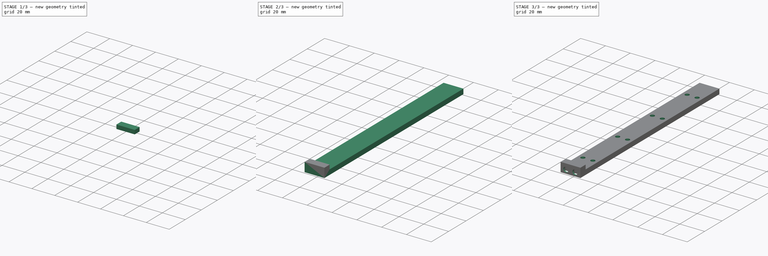
[diagram: build sequence overview — one tinted view per stage of 3, left to right]
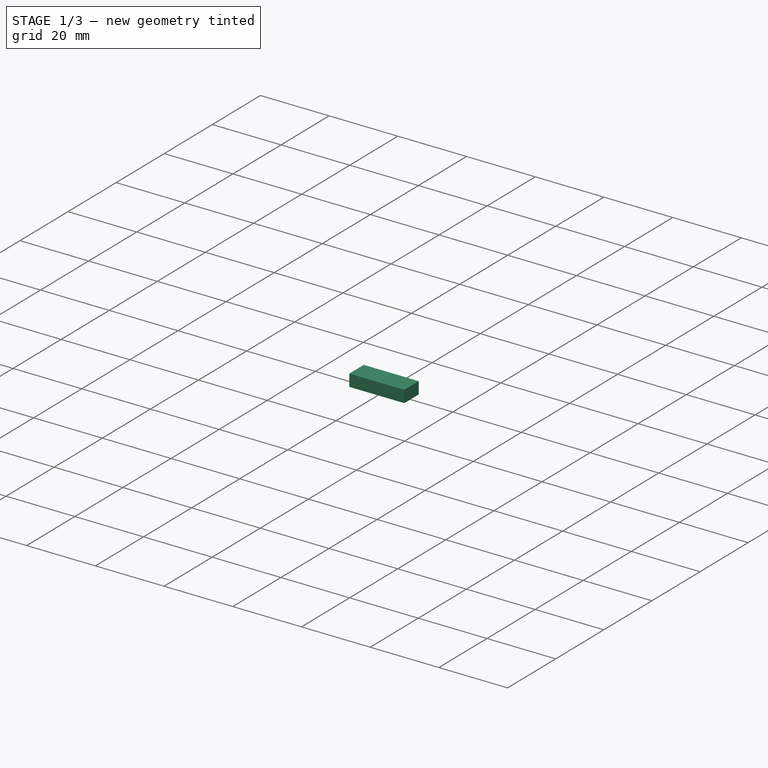
[diagram: stage 1 of 3 — iso view after this stage's code; geometry added in this stage tinted green]
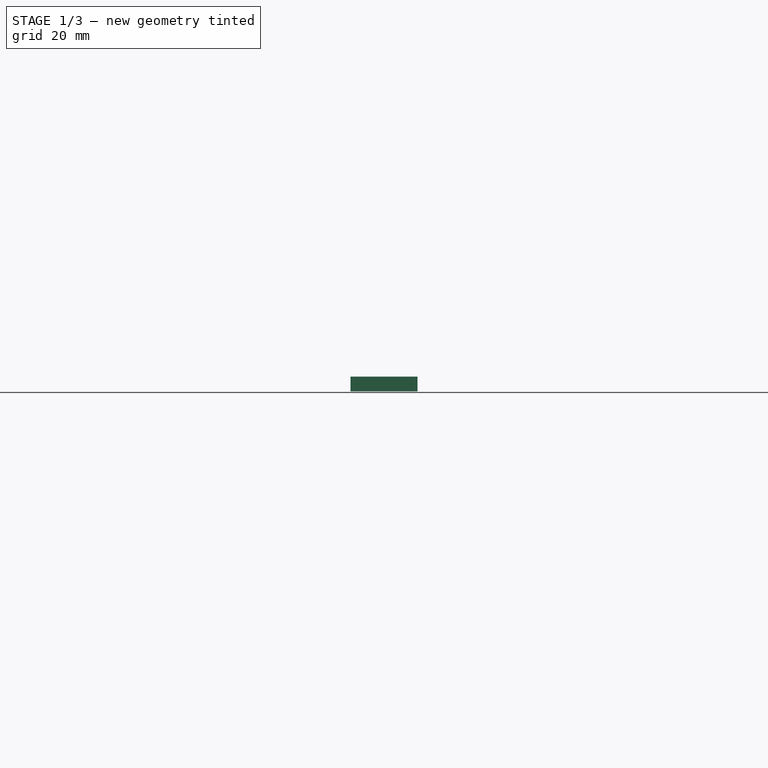
[diagram: stage 1 of 3 — front view after this stage's code; geometry added in this stage tinted green]
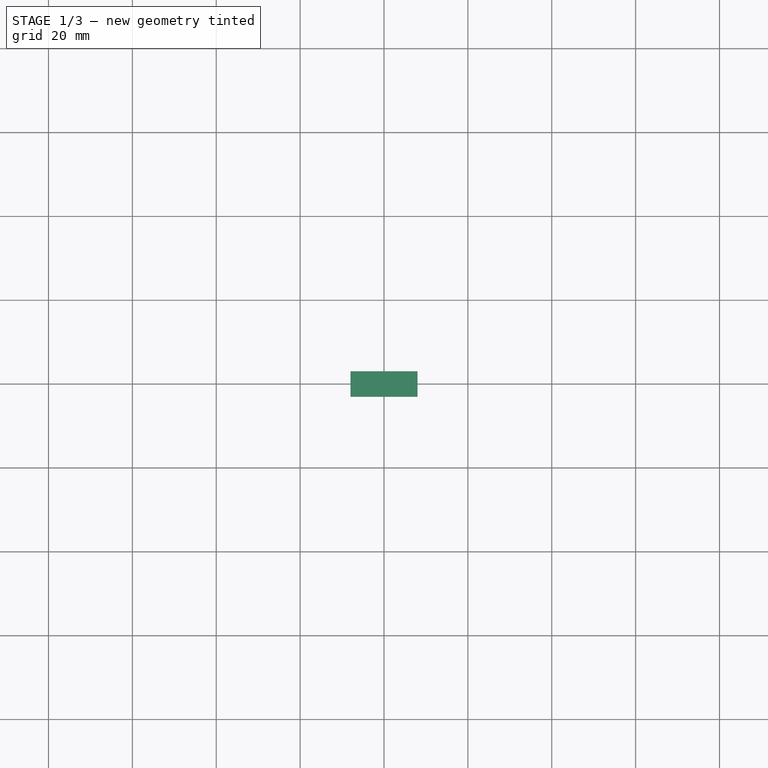
[diagram: stage 1 of 3 — top view after this stage's code; geometry added in this stage tinted green]
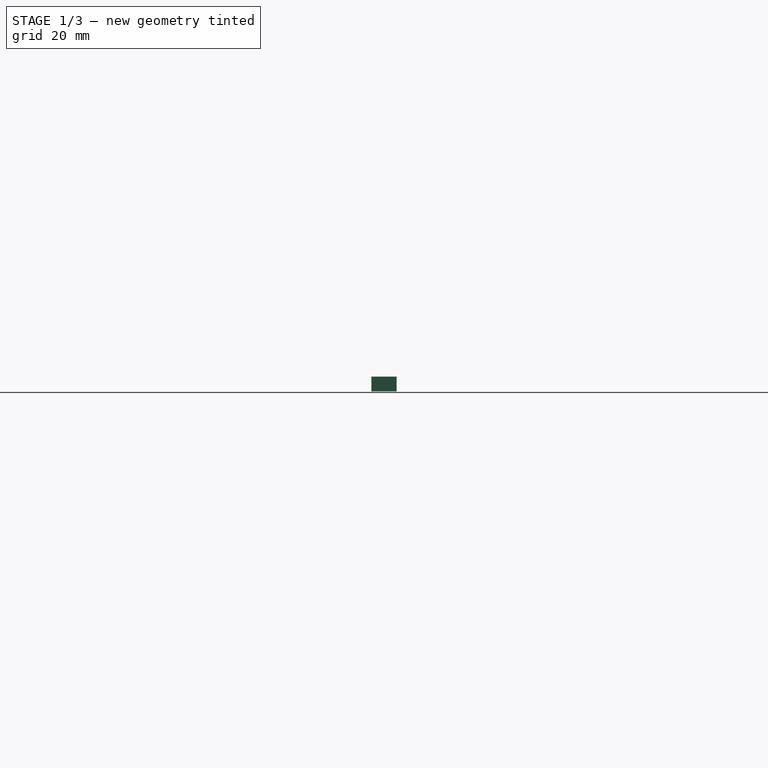
[diagram: stage 1 of 3 — right view after this stage's code; geometry added in this stage tinted green]
FCSTD DOCUMENT  (FreeCAD 1.0R39109 (Git))
Label: side support
License: All rights reserved
LicenseURL: https://en.wikipedia.org/wiki/All_rights_reserved
objects: Sketcher::SketchObject×5, PartDesign::Pad×3, PartDesign::Hole×1, PartDesign::Pocket×1, PartDesign::Body×1
note: 26 computed .brp shape members not serialized (recipe doc carries the construction recipe); baked Part::Feature solids carry a one-line shape summary decoded from their .brp
EXTERNAL_REF file=case.FCStd obj=Spreadsheet

FEATURE [Sketcher::SketchObject] Sketch
  ArcFitTolerance = 1e-06
  AttachmentSupport = -> [XY_Plane]
  FullyConstrained = true
  MakeInternals = false
  MapMode = 5
  expr: Constraints[27] = case#Spreadsheet.magnet_diameter
  expr: Constraints[28] = case#Spreadsheet.magnet_thickness
  sketch-geometry (15):
    g0: LineSegment StartX=-8 StartY=3 StartZ=0 EndX=-8 EndY=-3 EndZ=0
    g1: LineSegment StartX=-8 StartY=-3 StartZ=0 EndX=8 EndY=-3 EndZ=0
    g2: LineSegment StartX=8 StartY=-3 StartZ=0 EndX=8 EndY=3 EndZ=0
    g3: LineSegment StartX=8 StartY=3 StartZ=0 EndX=-8 EndY=3 EndZ=0
    g4: LineSegment StartX=6.7 StartY=-2 StartZ=0 EndX=0.65 EndY=-2 EndZ=0
    g5: LineSegment StartX=0.65 StartY=-2 StartZ=0 EndX=0.65 EndY=1.05 EndZ=0
    g6: LineSegment StartX=0.65 StartY=1.05 StartZ=0 EndX=6.7 EndY=1.05 EndZ=0
    g7: LineSegment StartX=6.7 StartY=1.05 StartZ=0 EndX=6.7 EndY=-2 EndZ=0
    g8: LineSegment StartX=-0.65 StartY=-2 StartZ=0 EndX=-6.7 EndY=-2 EndZ=0
    g9: LineSegment StartX=-6.7 StartY=-2 StartZ=0 EndX=-6.7 EndY=1.05 EndZ=0
    g10: LineSegment StartX=-6.7 StartY=1.05 StartZ=0 EndX=-0.65 EndY=1.05 EndZ=0
    g11: LineSegment StartX=-0.65 StartY=1.05 StartZ=0 EndX=-0.65 EndY=-2 EndZ=0
    g12: LineSegment [constr] StartX=0.65 StartY=1.05 StartZ=0 EndX=-0.65 EndY=1.05 EndZ=0
    g13: LineSegment [constr] StartX=6.7 StartY=1.05 StartZ=0 EndX=8 EndY=1.05 EndZ=0
    g14: LineSegment [constr] StartX=-6.7 StartY=1.05 StartZ=0 EndX=-8 EndY=1.05 EndZ=0
  constraints (43):
    c: Coincident(g0,g1)
    c: Coincident(g1,g2)
    c: Coincident(g2,g3)
    c: Coincident(g3,g0)
    c: Vertical(g0)
    c: Vertical(g2)
    c: Horizontal(g1)
    c: Horizontal(g3)
    c: Coincident(g4,g5)
    c: Coincident(g5,g6)
    c: Coincident(g6,g7)
    c: Coincident(g7,g4)
    c: Horizontal(g4)
    c: Horizontal(g6)
    c: Vertical(g5)
    c: Vertical(g7)
    c: Coincident(g8,g9)
    c: Coincident(g9,g10)
    c: Coincident(g10,g11)
    c: Coincident(g11,g8)
    c: Horizontal(g8)
    c: Horizontal(g10)
    c: Vertical(g9)
    c: Vertical(g11)
    c: Equal(g4,g8)
    c: Horizontal(g4,g8)
    c: Symmetric(g2,g0,g-1)
    c: DistanceX(g9,g10) = 6.05
    c: Distance(g9,g8) = 3.05
    c: DistanceX(g0,g2) = 16
    c: DistanceY(g1,g2) = 6
    c: Coincident(g12,g5)
    c: Coincident(g12,g10)
    c: Coincident(g13,g6)
    c: PointOnObject(g13,g2)
    c: Horizontal(g13)
    c: Coincident(g14,g9)
    c: PointOnObject(g14,g0)
    c: Horizontal(g14)
    c: Equal(g14,g12)
    c: Horizontal(g12)
    c: Equal(g14,g13)
    c: Distance(g1,g4) = 1
FEATURE [PartDesign::Pad] Pad  label="magnets compartment"
  Direction = (0,0,1)
  Length = 2.05
  Length2 = 10
  Profile = -> Sketch
  ReferenceAxis = -> Sketch [N_Axis]
  Refine = true
  Suppressed = false
  Type = 0
  expr: Length = case#Spreadsheet.magnet_diameter - case#Spreadsheet.wall_thickness
FEATURE [Sketcher::SketchObject] Sketch001
  ArcFitTolerance = 1e-06
  AttachmentSupport = -> [Pad]
  ExternalGeometry = -> [Pad]
  FullyConstrained = true
  MakeInternals = false
  MapMode = 5
  Placement = pos=(0,0,2.05) rot=(0,0,1;0rad)
  sketch-geometry (4):
    g0: LineSegment StartX=-8 StartY=3 StartZ=0 EndX=-8 EndY=-3 EndZ=0
    g1: LineSegment StartX=-8 StartY=-3 StartZ=0 EndX=8 EndY=-3 EndZ=0
    g2: LineSegment StartX=8 StartY=-3 StartZ=0 EndX=8 EndY=3 EndZ=0
    g3: LineSegment StartX=8 StartY=3 StartZ=0 EndX=-8 EndY=3 EndZ=0
  constraints (10):
    c: Coincident(g0,g1)
    c: Coincident(g1,g2)
    c: Coincident(g2,g3)
    c: Coincident(g3,g0)
    c: Vertical(g0)
    c: Vertical(g2)
    c: Horizontal(g1)
    c: Horizontal(g3)
    c: Coincident(g0,g-3)
    c: Coincident(g1,g-4)
FEATURE [PartDesign::Pad] Pad001  label="front wall for magnets compartment"
  BaseFeature = -> Pad
  Direction = (0,0,1)
  Length = 1.45
  Length2 = 10
  Profile = -> Sketch001
  ReferenceAxis = -> Sketch001 [N_Axis]
  Refine = true
  Suppressed = false
  Type = 0
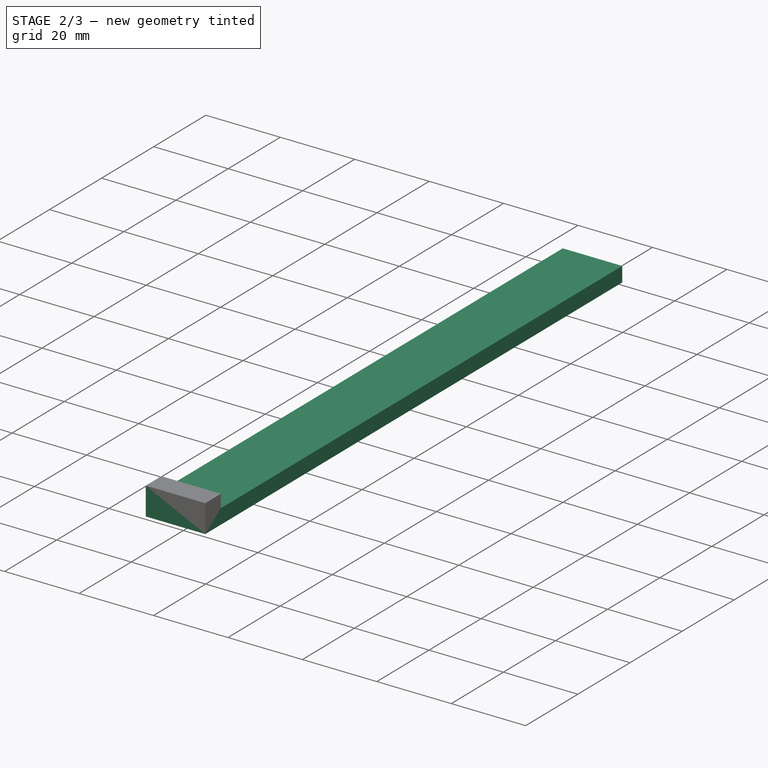
[diagram: stage 2 of 3 — iso view after this stage's code; geometry added in this stage tinted green]
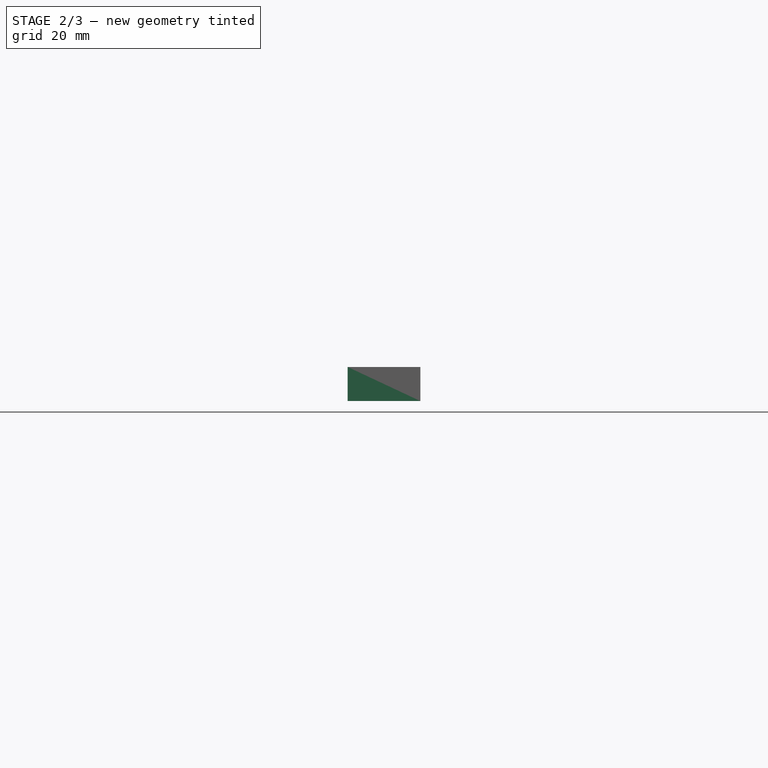
[diagram: stage 2 of 3 — front view after this stage's code; geometry added in this stage tinted green]
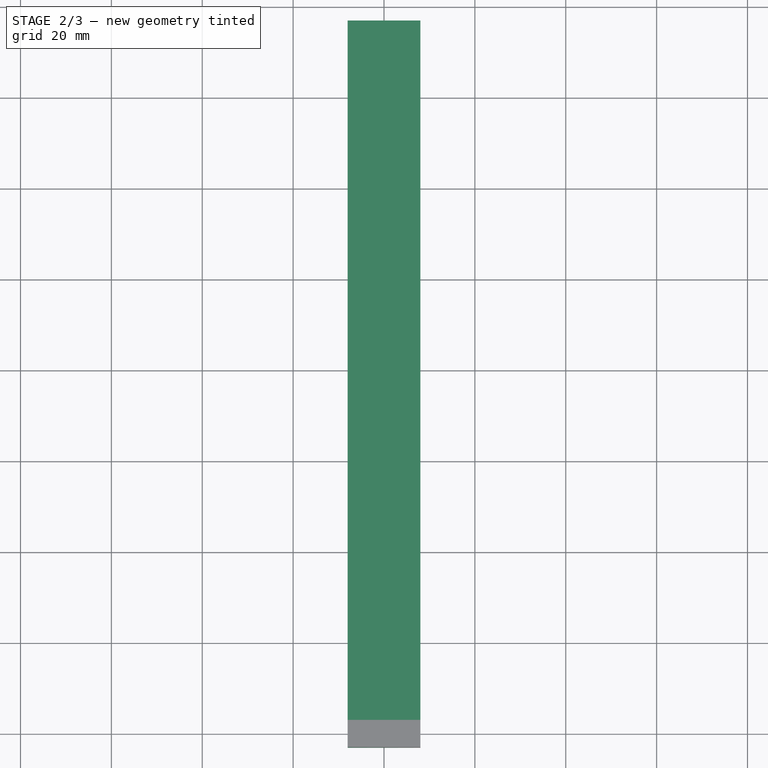
[diagram: stage 2 of 3 — top view after this stage's code; geometry added in this stage tinted green]
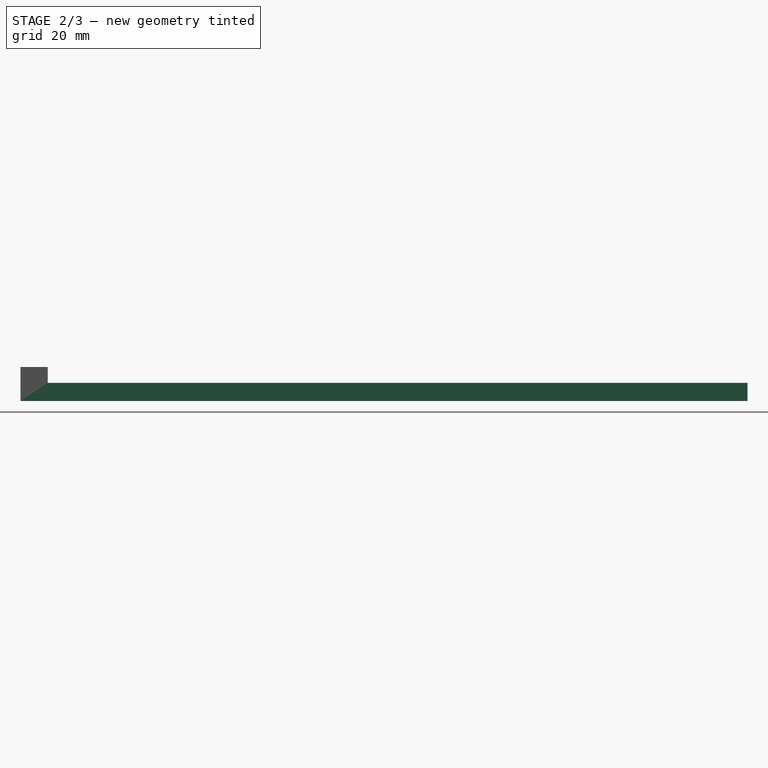
[diagram: stage 2 of 3 — right view after this stage's code; geometry added in this stage tinted green]
FEATURE [Sketcher::SketchObject] Sketch002
  ArcFitTolerance = 1e-06
  AttachmentSupport = -> [Pad001]
  ExternalGeometry = -> [Pad001]
  FullyConstrained = true
  MakeInternals = false
  MapMode = 5
  Placement = pos=(0,0,0) rot=(1,0,0;3.14159rad)
  sketch-geometry (12):
    g0: LineSegment StartX=-8 StartY=3 StartZ=0 EndX=-8 EndY=-157 EndZ=0
    g1: LineSegment StartX=-8 StartY=-157 StartZ=0 EndX=8 EndY=-157 EndZ=0
    g2: LineSegment StartX=8 StartY=-157 StartZ=0 EndX=8 EndY=3 EndZ=0
    g3: LineSegment StartX=8 StartY=3 StartZ=0 EndX=-8 EndY=3 EndZ=0
    g4: LineSegment StartX=-6.7 StartY=2 StartZ=0 EndX=-6.7 EndY=-1.05 EndZ=0
    g5: LineSegment StartX=-6.7 StartY=-1.05 StartZ=0 EndX=-0.65 EndY=-1.05 EndZ=0
    g6: LineSegment StartX=-0.65 StartY=-1.05 StartZ=0 EndX=-0.65 EndY=2 EndZ=0
    g7: LineSegment StartX=-0.65 StartY=2 StartZ=0 EndX=-6.7 EndY=2 EndZ=0
    g8: LineSegment StartX=0.65 StartY=2 StartZ=0 EndX=0.65 EndY=-1.05 EndZ=0
    g9: LineSegment StartX=0.65 StartY=-1.05 StartZ=0 EndX=6.7 EndY=-1.05 EndZ=0
    g10: LineSegment StartX=6.7 StartY=-1.05 StartZ=0 EndX=6.7 EndY=2 EndZ=0
    g11: LineSegment StartX=6.7 StartY=2 StartZ=0 EndX=0.65 EndY=2 EndZ=0
  constraints (30):
    c: Coincident(g0,g1)
    c: Coincident(g1,g2)
    c: Coincident(g2,g3)
    c: Coincident(g3,g0)
    c: Vertical(g0)
    c: Vertical(g2)
    c: Horizontal(g1)
    c: Distance(g1,g3) = 160
    c: Coincident(g0,g-3)
    c: Coincident(g-4,g2)
    c: Coincident(g4,g5)
    c: Coincident(g5,g6)
    c: Coincident(g6,g7)
    c: Coincident(g7,g4)
    c: Vertical(g4)
    c: Vertical(g6)
    c: Horizontal(g5)
    c: Horizontal(g7)
    c: Coincident(g4,g-8)
    c: Coincident(g5,g-7)
    c: Coincident(g8,g9)
    c: Coincident(g9,g10)
    c: Coincident(g10,g11)
    c: Coincident(g11,g8)
    c: Vertical(g8)
    c: Vertical(g10)
    c: Horizontal(g9)
    c: Horizontal(g11)
    c: Coincident(g8,g-6)
    c: Coincident(g9,g-5)
FEATURE [PartDesign::Pad] Pad002  label="body"
  BaseFeature = -> Pad001
  Direction = (0,0,-1)
  Length = 4
  Length2 = 10
  Profile = -> Sketch002
  ReferenceAxis = -> Sketch002 [N_Axis]
  Refine = true
  Suppressed = false
  Type = 0
  expr: Length = case#Spreadsheet.wall_thickness
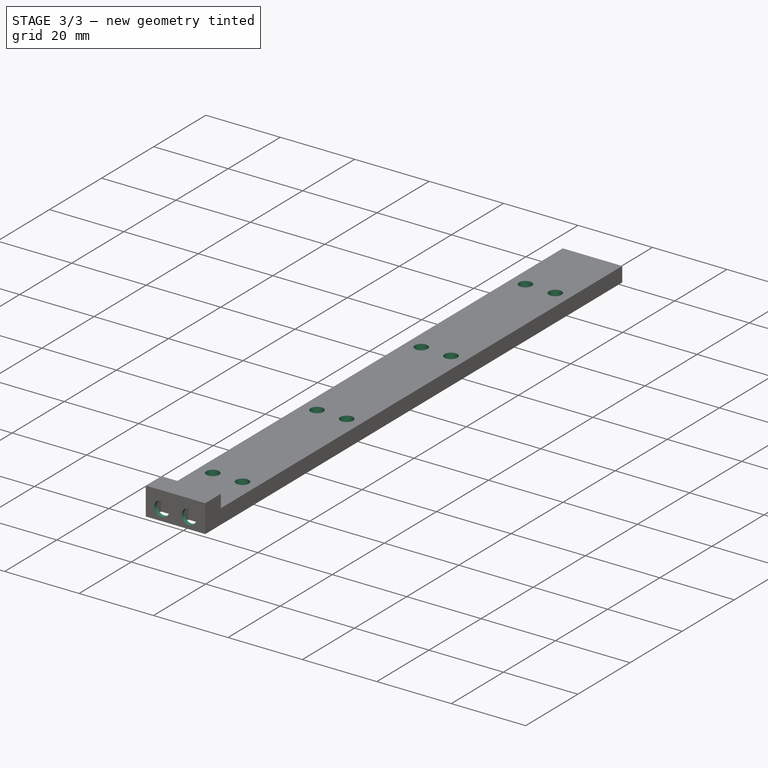
[diagram: stage 3 of 3 — iso view after this stage's code; geometry added in this stage tinted green]
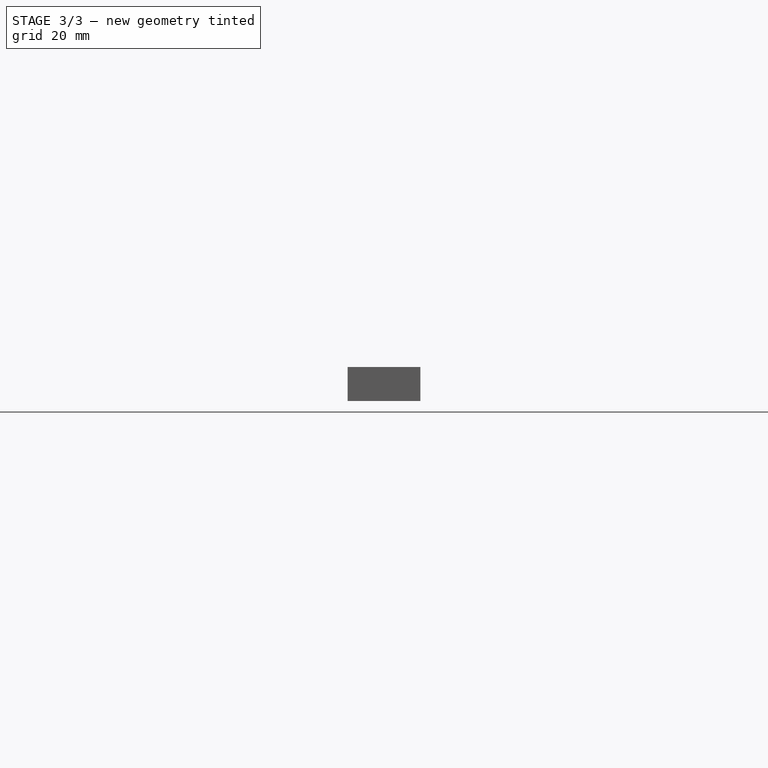
[diagram: stage 3 of 3 — front view after this stage's code; geometry added in this stage tinted green]
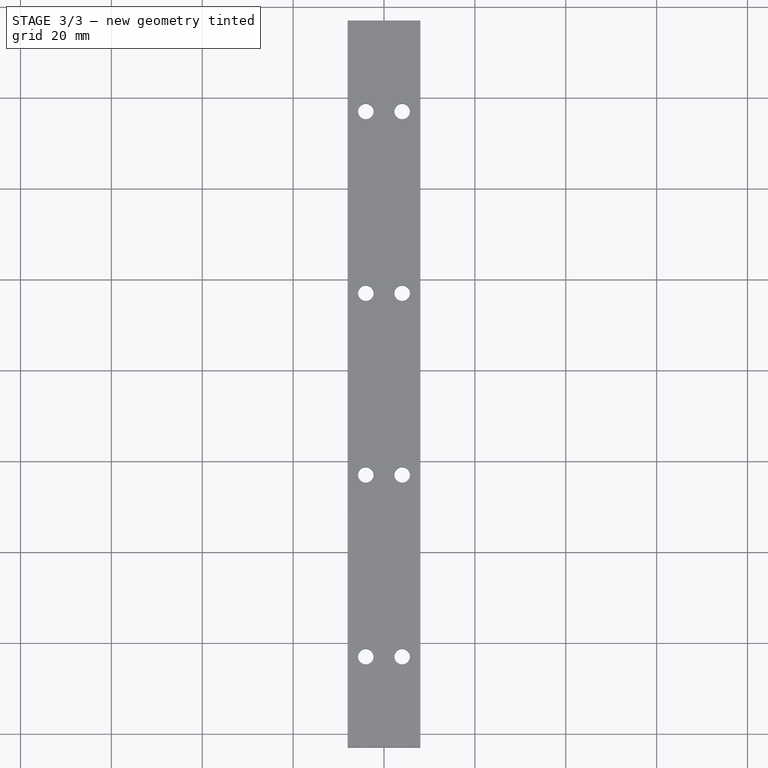
[diagram: stage 3 of 3 — top view after this stage's code; geometry added in this stage tinted green]
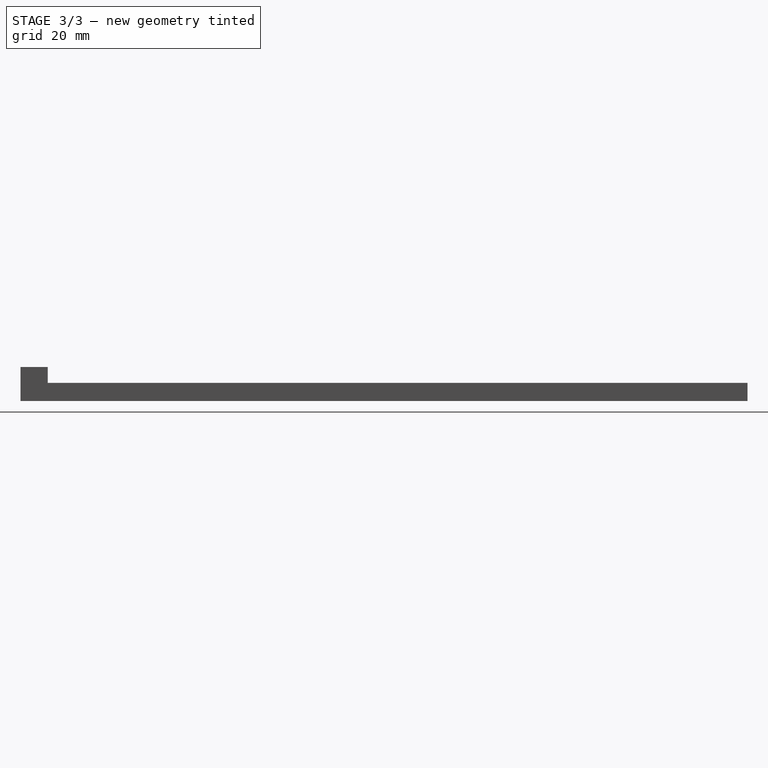
[diagram: stage 3 of 3 — right view after this stage's code; geometry added in this stage tinted green]
FEATURE [Sketcher::SketchObject] Sketch003
  ArcFitTolerance = 1e-06
  AttachmentSupport = -> [Pad002]
  ExternalGeometry = -> [Pad002]
  FullyConstrained = true
  MakeInternals = false
  MapMode = 5
  sketch-geometry (13):
    g0: Circle CenterX=4 CenterY=97 CenterZ=0 NormalX=0 NormalY=0 NormalZ=1 AngleXU=0 Radius=1.5
    g1: Circle CenterX=-4 CenterY=97 CenterZ=0 NormalX=0 NormalY=0 NormalZ=1 AngleXU=0 Radius=1.5
    g2: Circle CenterX=4 CenterY=17 CenterZ=0 NormalX=0 NormalY=0 NormalZ=1 AngleXU=0 Radius=1.5
    g3: Circle CenterX=-4 CenterY=17 CenterZ=0 NormalX=0 NormalY=0 NormalZ=1 AngleXU=0 Radius=1.5
    g4: Circle CenterX=4 CenterY=57 CenterZ=0 NormalX=0 NormalY=0 NormalZ=1 AngleXU=0 Radius=1.5
    g5: Circle CenterX=-4 CenterY=57 CenterZ=0 NormalX=0 NormalY=0 NormalZ=1 AngleXU=0 Radius=1.5
    g6: GeomPoint [constr] X=4 Y=157 Z=0
    g7: GeomPoint [constr] X=-4 Y=157 Z=0
    g8: LineSegment [constr] StartX=-8 StartY=157 StartZ=0 EndX=-4 EndY=157 EndZ=0
    g9: LineSegment [constr] StartX=-4 StartY=157 StartZ=0 EndX=4 EndY=157 EndZ=0
    g10: LineSegment [constr] StartX=4 StartY=157 StartZ=0 EndX=8 EndY=157 EndZ=0
    g11: Circle CenterX=-4 CenterY=137 CenterZ=0 NormalX=0 NormalY=0 NormalZ=1 AngleXU=0 Radius=1.5
    g12: Circle CenterX=4 CenterY=137 CenterZ=0 NormalX=0 NormalY=0 NormalZ=1 AngleXU=0 Radius=1.5
  constraints (34):
    c: Equal(g1,g3)
    c: Horizontal(g0,g1)
    c: Horizontal(g2,g3)
    c: Horizontal(g4,g5)
    c: Vertical(g0,g2)
    c: Vertical(g1,g3)
    c: DistanceY(g4,g0) = 40
    c: DistanceY(g2,g4) = 40
    c: Vertical(g6,g0)
    c: Vertical(g1,g7)
    c: Diameter(g1) = 3
    c: Coincident(g8,g-3)
    c: Coincident(g8,g7)
    c: Horizontal(g8)
    c: Coincident(g9,g7)
    c: Coincident(g9,g6)
    c: Horizontal(g9)
    c: Coincident(g10,g6)
    c: Coincident(g10,g-3)
    c: Horizontal(g12,g11)
    c: Equal(g11,g12)
    c: Equal(g12,g1)
    c: Vertical(g6,g12)
    c: Vertical(g0,g4)
    c: Vertical(g3,g5)
    c: Vertical(g1,g11)
    c: Equal(g12,g0)
    c: Equal(g1,g4)
    c: Equal(g4,g5)
    c: Equal(g5,g2)
    c: DistanceY(g12,g6) = 20
    c: DistanceY(g0,g12) = 40
    c: Equal(g10,g8)
    c: Distance(g6,g7) = 8
FEATURE [PartDesign::Hole] Hole  label="screw holes"
  BaseFeature = -> Pad002
  CustomThreadClearance = 0
  Depth = 25
  DepthType = 0
  Diameter = 3.4
  DrillForDepth = false
  DrillPoint = 1
  DrillPointAngle = 118
  HoleCutCountersinkAngle = 90
  HoleCutCustomValues = false
  HoleCutDepth = 0
  HoleCutDiameter = 6.1
  HoleCutType = 0
  ModelThread = false
  Profile = -> Sketch003
  Refine = true
  Suppressed = false
  Tapered = false
  TaperedAngle = 90
  ThreadClass = 0
  ThreadDepth = 25
  ThreadDepthType = 0
  ThreadDirection = 0
  ThreadFit = 0
  ThreadSize = 9
  ThreadType = 1
  Threaded = false
  UseCustomThreadClearance = false
FEATURE [Sketcher::SketchObject] Sketch004
  ArcFitTolerance = 1e-06
  AttachmentSupport = -> [Hole]
  ExternalGeometry = -> [Hole]
  FullyConstrained = true
  MakeInternals = false
  MapMode = 5
  Placement = pos=(0,-3,0) rot=(1,0,0;1.5708rad)
  sketch-geometry (2):
    g0: Circle CenterX=-3.675 CenterY=-0.975 CenterZ=0 NormalX=0 NormalY=0 NormalZ=1 AngleXU=0 Radius=2
    g1: Circle CenterX=3.675 CenterY=-0.975 CenterZ=0 NormalX=0 NormalY=0 NormalZ=1 AngleXU=0 Radius=2
  constraints (4):
    c: Equal(g1,g0)
    c: Symmetric(g-4,g-3,g0)
    c: Symmetric(g-5,g-6,g1)
    c: Diameter(g0) = 4
FEATURE [PartDesign::Pocket] Pocket  label="magnets opening"
  BaseFeature = -> Hole
  Direction = (0,1,-2e-16)
  Length = 1
  Length2 = 5
  Profile = -> Sketch004
  ReferenceAxis = -> Sketch004 [N_Axis]
  Refine = true
  Suppressed = false
  Type = 0
FEATURE [PartDesign::Body] Body
  AllowCompound = false
  Group = -> [Sketch,Pad,Sketch001,Pad001,Sketch002,Pad002,Sketch003,Hole,Sketch004,Pocket]
  Origin = -> Origin
  Tip = -> Pocket
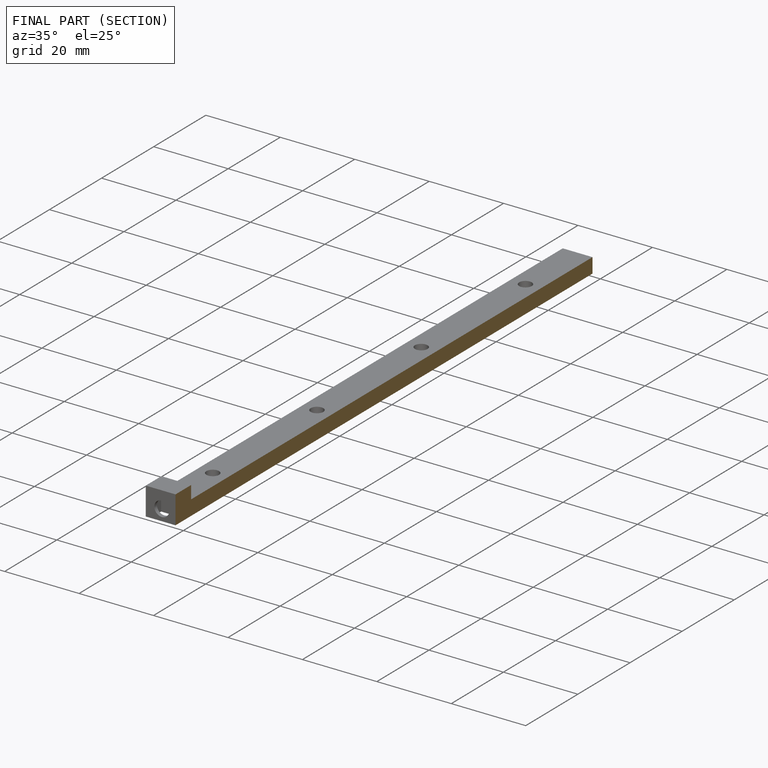
[diagram: finished part — half-section view (interior)]
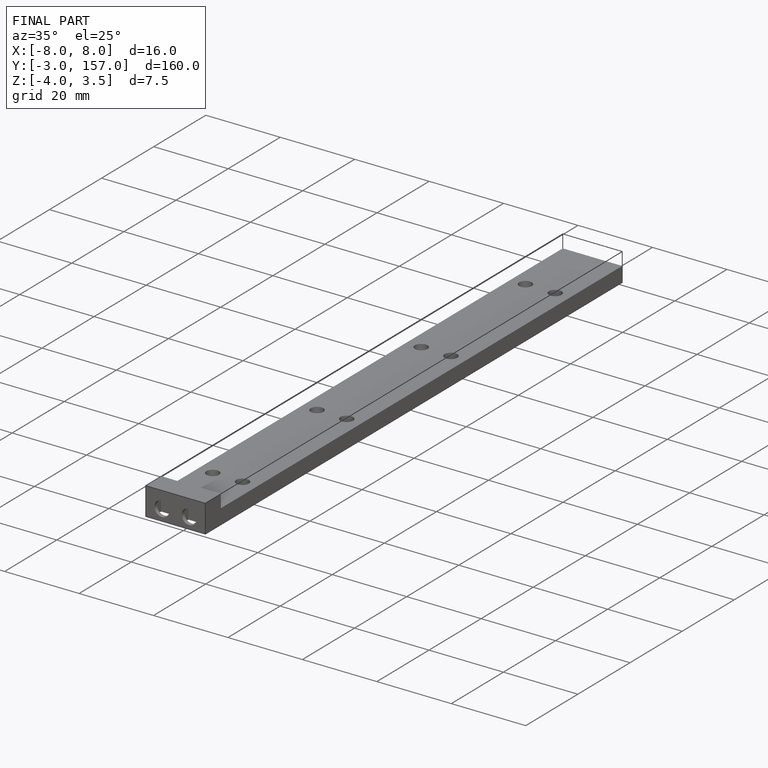
[diagram: finished part — iso view with bounding-box wireframe]
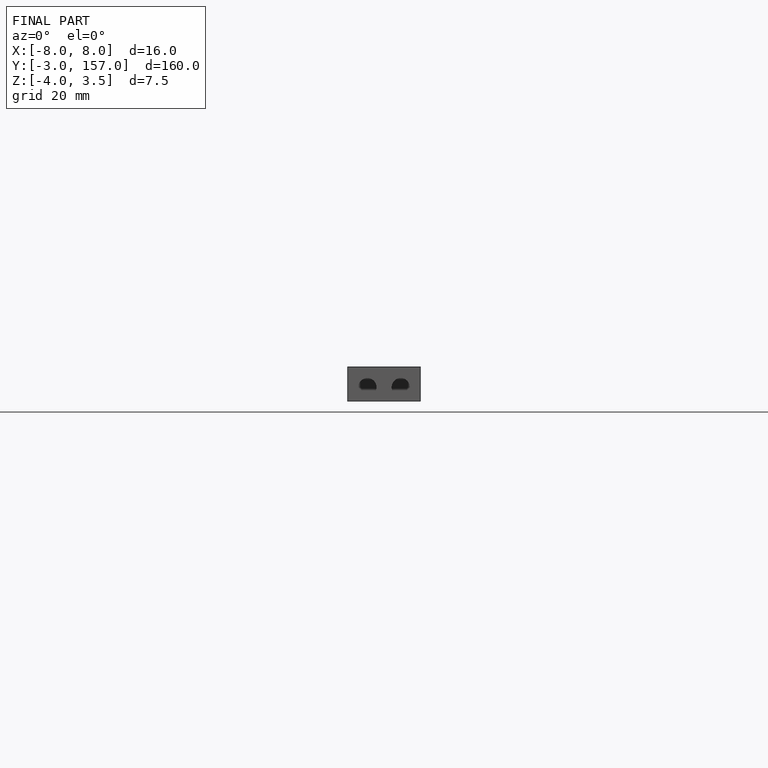
[diagram: finished part — front view with bounding-box wireframe]
